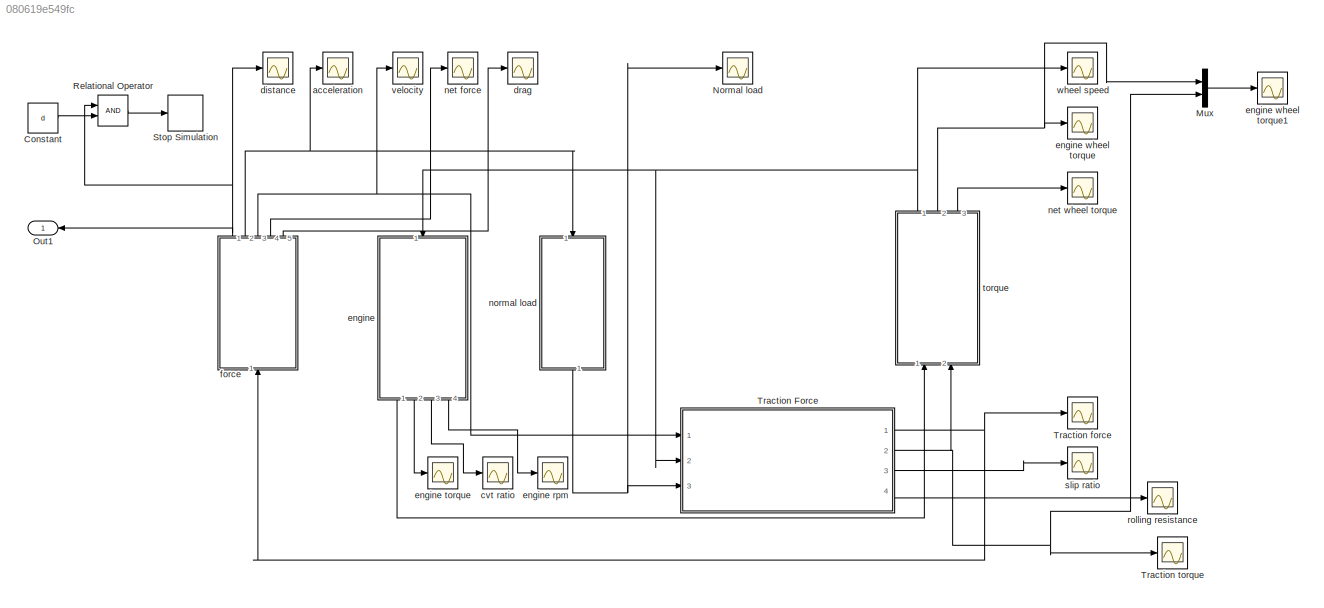
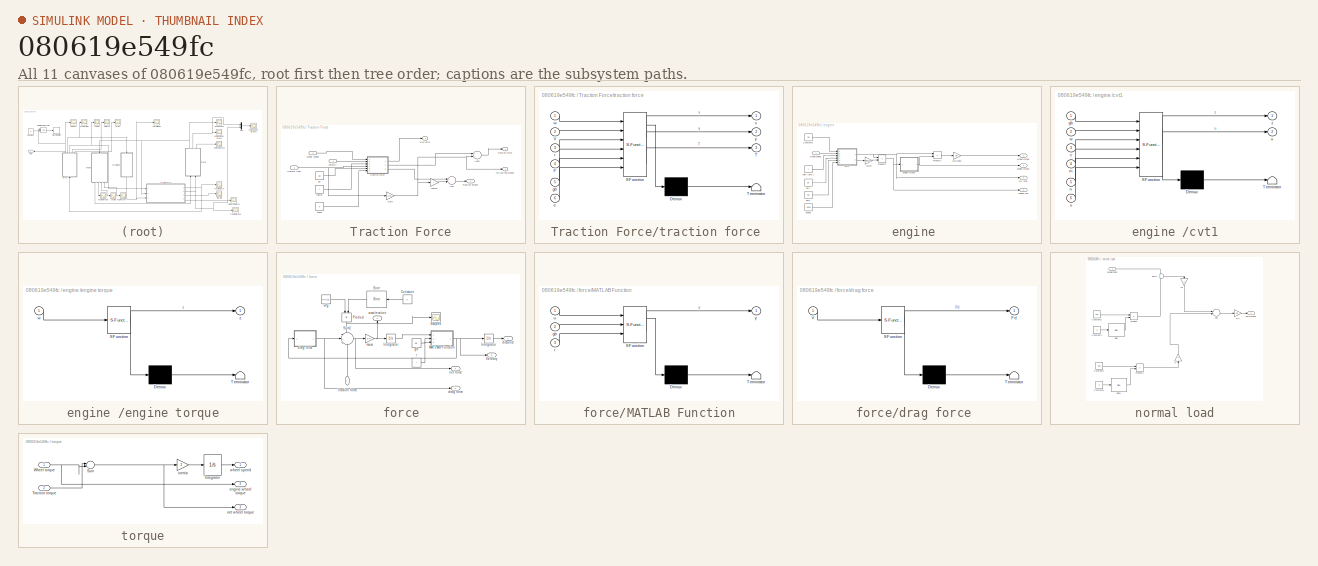
[diagram: thumbnail index - all 11 canvases of the model, root first then tree order]
MODEL slx_080619e549fc
KIND model
CONFIG AbsTol = auto
CONFIG FixedStep = 0.1
CONFIG MaxStep = auto
CONFIG MinStep = auto
CONFIG RelTol = 1e-3
CONFIG SampleTimeConstraint = Unconstrained
CONFIG Solver = ode23s
CONFIG SolverMode = Auto
CONFIG SolverName = ode23s
CONFIG StartTime = 0.0
CONFIG StopTime = 12
BLOCK [Constant] Constant
  Value = d
BLOCK [Mux] Mux
  DisplayOption = bar
  Inputs = 2
  Ports = [2, 1]
BLOCK [Scope] Normal load
  Ports = [1]
  ScopeSpecificationString = C++SS(StrPVP('Location','[878, 300, 1202, 539]'),StrPVP('Open','off'),MxPVP('AxesTitles',24,'struct(''axes1'',''%<SignalLabel>'')'),MxPVP('ScopeGraphics',28,'struct(''FigureColor'',''[0.5 0.5 0.5]'',''AxesColor'',''[0 0 0]'',''AxesTickColor'',''[1 1 1]'',''LineColors'',''[1 1 0;1 0 1;0 1 1;1 0 0;0 1 0;0 0 1]'',''LineStyles'',''-|-|-|-|-|-'',''LineWidths'',''[0.5 0.5 0.5 0.5 0.5 0.5]'',''MarkerStyl...<+273ch>
BLOCK [Outport] Out1
  IconDisplay = Port number
BLOCK [RelationalOperator] Relational Operator
  InputSameDT = off
  OutDataTypeStr = boolean
  Ports = [2, 1]
BLOCK [Stop] Stop Simulation
BLOCK [SubSystem] Traction Force
  Ports = [3, 4]
  RequestExecContextInheritance = off
  Variant = off
BLOCK [Sum] Traction Force/Add
  InputSameDT = off
  OutDataTypeStr = Inherit: Inherit via internal rule
  Ports = [2, 1]
  SaturateOnIntegerOverflow = off
BLOCK [Sum] Traction Force/Add1
  InputSameDT = off
  Inputs = +-
  OutDataTypeStr = Inherit: Inherit via internal rule
  Ports = [2, 1]
  SaturateOnIntegerOverflow = off
BLOCK [Gain] Traction Force/Gain
  Gain = 0.01
  OutDataTypeStr = Inherit: Inherit via internal rule
  ParamDataTypeStr = Inherit: Inherit via internal rule
  SaturateOnIntegerOverflow = off
BLOCK [Inport] Traction Force/Normal load
  IconDisplay = Port number
  Port = 3
BLOCK [Outport] Traction Force/Traction Torque
  IconDisplay = Port number
  Port = 2
BLOCK [Outport] Traction Force/Traction force
  IconDisplay = Port number
BLOCK [Inport] Traction Force/Wheel speed
  IconDisplay = Port number
  Port = 2
BLOCK [Constant] Traction Force/event
  Value = e
BLOCK [Constant] Traction Force/gb 
  Value = gb
BLOCK [Gain] Traction Force/radius
  Gain = r
  OutDataTypeStr = Inherit: Inherit via internal rule
  ParamDataTypeStr = Inherit: Inherit via internal rule
  SaturateOnIntegerOverflow = off
BLOCK [Constant] Traction Force/radius 
  Value = r
BLOCK [Outport] Traction Force/rolling resistance
  IconDisplay = Port number
  Port = 4
BLOCK [Outport] Traction Force/slip ratio
  IconDisplay = Port number
  Port = 3
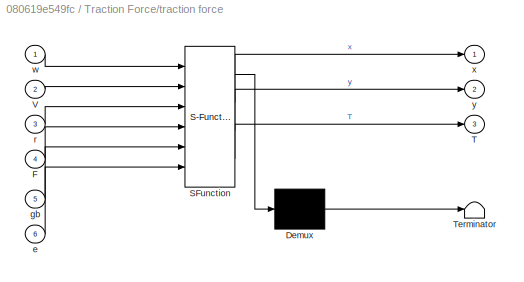
BLOCK [SubSystem] Traction Force/traction force 
  ErrorFcn = Stateflow.Translate.translate
  PermitHierarchicalResolution = ExplicitOnly
  Ports = [6, 3]
  RequestExecContextInheritance = off
  SFBlockType = MATLAB Function
  TreatAsAtomicUnit = on
  Variant = off
BLOCK [Demux] Traction Force/traction force / Demux 
  Outputs = 1
  Ports = [1, 1]
BLOCK [S-Function] Traction Force/traction force / SFunction 
  EnableBusSupport = on
  FunctionName = sf_sfun
  PortCounts = [6 4]
  Ports = [6, 4]
  SFunctionDeploymentMode = off
  Tag = Stateflow S-Function Fx 3
BLOCK [Terminator] Traction Force/traction force / Terminator 
BLOCK [Inport] Traction Force/traction force /F
  IconDisplay = Port number
  Port = 4
BLOCK [Outport] Traction Force/traction force /T
  IconDisplay = Port number
  Port = 3
BLOCK [Inport] Traction Force/traction force /V
  IconDisplay = Port number
  Port = 2
BLOCK [Inport] Traction Force/traction force /e
  IconDisplay = Port number
  Port = 6
BLOCK [Inport] Traction Force/traction force /gb
  IconDisplay = Port number
  Port = 5
BLOCK [Inport] Traction Force/traction force /r
  IconDisplay = Port number
  Port = 3
BLOCK [Inport] Traction Force/traction force /w
  IconDisplay = Port number
BLOCK [Outport] Traction Force/traction force /x
  IconDisplay = Port number
BLOCK [Outport] Traction Force/traction force /y
  IconDisplay = Port number
  Port = 2
BLOCK [Inport] Traction Force/velocity
  IconDisplay = Port number
BLOCK [Scope] Traction force
  Ports = [1]
  ScopeSpecificationString = Simulink.scopes.TimeScopeBlockCfg('CurrentConfiguration', extmgr.ConfigurationSet(extmgr.Configuration('Core','General UI',true),extmgr.Configuration('Core','Source UI',true),extmgr.Configuration('Sources','WiredSimulink',true,'DataLoggingVariableName','ScopeData2','DataLoggingSaveFormat','StructureWithTime','DataLoggingLimitDataPoints',true,'DataLoggingDecimation','1','DataLoggingDecimateData',tr...<+1701ch>
BLOCK [Scope] Traction torque
  Ports = [1]
  ScopeSpecificationString = Simulink.scopes.TimeScopeBlockCfg('CurrentConfiguration', extmgr.ConfigurationSet(extmgr.Configuration('Core','General UI',true),extmgr.Configuration('Core','Source UI',true),extmgr.Configuration('Sources','WiredSimulink',true,'DataLoggingVariableName','ScopeData8','DataLoggingSaveFormat','StructureWithTime','DataLoggingLimitDataPoints',true,'DataLoggingDecimation','1','DataLoggingDecimateData',tr...<+1693ch>
BLOCK [Scope] acceleration
  Ports = [1]
  ScopeSpecificationString = Simulink.scopes.TimeScopeBlockCfg('CurrentConfiguration', extmgr.ConfigurationSet(extmgr.Configuration('Core','General UI',true),extmgr.Configuration('Core','Source UI',true),extmgr.Configuration('Sources','WiredSimulink',true,'DataLoggingVariableName','ScopeData1','DataLoggingSaveFormat','StructureWithTime','DataLoggingLimitDataPoints',true,'DataLoggingDecimation','1','DataLoggingDecimateData',tr...<+1690ch>
BLOCK [Scope] cvt ratio
  Ports = [1]
  ScopeSpecificationString = Simulink.scopes.TimeScopeBlockCfg('CurrentConfiguration', extmgr.ConfigurationSet(extmgr.Configuration('Core','General UI',true),extmgr.Configuration('Core','Source UI',true),extmgr.Configuration('Sources','WiredSimulink',true,'DataLoggingVariableName','ScopeData15','DataLoggingSaveFormat','StructureWithTime','DataLoggingLimitDataPoints',true,'DataLoggingDecimation','1','DataLoggingDecimateData',t...<+1734ch>
BLOCK [Scope] distance
  Ports = [1]
  ScopeSpecificationString = Simulink.scopes.TimeScopeBlockCfg('CurrentConfiguration', extmgr.ConfigurationSet(extmgr.Configuration('Core','General UI',true),extmgr.Configuration('Core','Source UI',true),extmgr.Configuration('Sources','WiredSimulink',true,'DataLoggingSaveFormat','StructureWithTime','DataLoggingLimitDataPoints',true,'DataLoggingDecimation','1','DataLoggingDecimateData',true),extmgr.Configuration('Visuals','Tim...<+1645ch>
BLOCK [Scope] drag
  Ports = [1]
  ScopeSpecificationString = Simulink.scopes.TimeScopeBlockCfg('CurrentConfiguration', extmgr.ConfigurationSet(extmgr.Configuration('Core','General UI',true),extmgr.Configuration('Core','Source UI',true),extmgr.Configuration('Sources','WiredSimulink',true,'DataLoggingVariableName','ScopeData11','DataLoggingSaveFormat','StructureWithTime','DataLoggingLimitDataPoints',true,'DataLoggingDecimation','1','DataLoggingDecimateData',t...<+1692ch>
BLOCK [SubSystem] engine 
  Ports = [1, 4]
  RequestExecContextInheritance = off
  Variant = off
BLOCK [Constant] engine /Constant1
  Value = gb
BLOCK [Gain] engine /GB ratio1
  Gain = gb
  OutDataTypeStr = Inherit: Inherit via internal rule
  ParamDataTypeStr = Inherit: Inherit via internal rule
  SaturateOnIntegerOverflow = off
BLOCK [Product] engine /Product1
  InputSameDT = off
  OutDataTypeStr = Inherit: Inherit via internal rule
  Ports = [2, 1]
  RndMeth = Floor
  SaturateOnIntegerOverflow = off
BLOCK [Product] engine /Product2
  InputSameDT = off
  OutDataTypeStr = Inherit: Inherit via internal rule
  Ports = [2, 1]
  RndMeth = Floor
  SaturateOnIntegerOverflow = off
BLOCK [Outport] engine /cvt ratio
  IconDisplay = Port number
  Port = 3
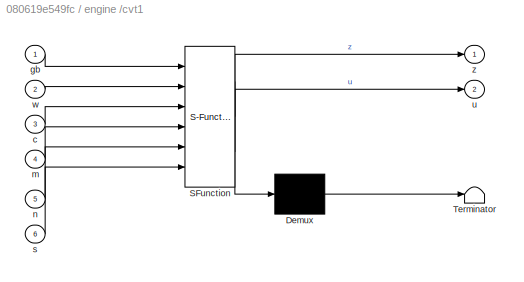
BLOCK [SubSystem] engine /cvt1
  ErrorFcn = Stateflow.Translate.translate
  PermitHierarchicalResolution = ExplicitOnly
  Ports = [6, 2]
  RequestExecContextInheritance = off
  SFBlockType = MATLAB Function
  TreatAsAtomicUnit = on
  Variant = off
BLOCK [Demux] engine /cvt1/ Demux 
  Outputs = 1
  Ports = [1, 1]
BLOCK [S-Function] engine /cvt1/ SFunction 
  EnableBusSupport = on
  FunctionName = sf_sfun
  PortCounts = [6 3]
  Ports = [6, 3]
  SFunctionDeploymentMode = off
  Tag = Stateflow S-Function Fx 5
BLOCK [Terminator] engine /cvt1/ Terminator 
BLOCK [Inport] engine /cvt1/c
  IconDisplay = Port number
  Port = 3
BLOCK [Inport] engine /cvt1/gb
  IconDisplay = Port number
BLOCK [Inport] engine /cvt1/m
  IconDisplay = Port number
  Port = 4
BLOCK [Inport] engine /cvt1/n
  IconDisplay = Port number
  Port = 5
BLOCK [Inport] engine /cvt1/s
  IconDisplay = Port number
  Port = 6
BLOCK [Outport] engine /cvt1/u
  IconDisplay = Port number
  Port = 2
BLOCK [Inport] engine /cvt1/w
  IconDisplay = Port number
  Port = 2
BLOCK [Outport] engine /cvt1/z
  IconDisplay = Port number
BLOCK [Outport] engine /engine rpm
  IconDisplay = Port number
  Port = 4
BLOCK [SubSystem] engine /engine torque
  ErrorFcn = Stateflow.Translate.translate
  PermitHierarchicalResolution = ExplicitOnly
  Ports = [1, 1]
  RequestExecContextInheritance = off
  SFBlockType = MATLAB Function
  TreatAsAtomicUnit = on
  Variant = off
BLOCK [Outport] engine /engine torque  
  IconDisplay = Port number
  Port = 2
BLOCK [Demux] engine /engine torque/ Demux 
  Outputs = 1
  Ports = [1, 1]
BLOCK [S-Function] engine /engine torque/ SFunction 
  EnableBusSupport = on
  FunctionName = sf_sfun
  PortCounts = [1 2]
  Ports = [1, 2]
  SFunctionDeploymentMode = off
  Tag = Stateflow S-Function Fx 6
BLOCK [Terminator] engine /engine torque/ Terminator 
BLOCK [Inport] engine /engine torque/w
  IconDisplay = Port number
BLOCK [Outport] engine /engine torque/z
  IconDisplay = Port number
BLOCK [Gain] engine /factor
  Gain = gb/0.104
  OutDataTypeStr = Inherit: Inherit via internal rule
  ParamDataTypeStr = Inherit: Inherit via internal rule
  SaturateOnIntegerOverflow = off
BLOCK [Constant] engine /hgr1
  Value = hgr
BLOCK [Constant] engine /lgr1
  Value = lgr
BLOCK [Constant] engine /shift ratio 1
  Value = c
BLOCK [Constant] engine /speed
  Value = 3800
BLOCK [Inport] engine /wheel speed 
  IconDisplay = Port number
BLOCK [Outport] engine /wheel torque 
  IconDisplay = Port number
BLOCK [Scope] engine rpm
  Ports = [1]
  ScopeSpecificationString = C++SS(StrPVP('Location','[291, 57, 592, 287]'),StrPVP('Open','off'),MxPVP('AxesTitles',24,'struct(''axes1'',''%<SignalLabel>'')'),MxPVP('ScopeGraphics',28,'struct(''FigureColor'',''[0.5 0.5 0.5]'',''AxesColor'',''[0 0 0]'',''AxesTickColor'',''[1 1 1]'',''LineColors'',''[1 1 0;1 0 1;0 1 1;1 0 0;0 1 0;0 0 1]'',''LineStyles'',''-|-|-|-|-|-'',''LineWidths'',''[0.5 0.5 0.5 0.5 0.5 0.5]'',''MarkerStyles...<+271ch>
BLOCK [Scope] engine torque
  Ports = [1]
  ScopeSpecificationString = C++SS(StrPVP('Location','[349, 139, 673, 378]'),StrPVP('Open','off'),MxPVP('AxesTitles',24,'struct(''axes1'',''%<SignalLabel>'')'),MxPVP('ScopeGraphics',28,'struct(''FigureColor'',''[0.5 0.5 0.5]'',''AxesColor'',''[0 0 0]'',''AxesTickColor'',''[1 1 1]'',''LineColors'',''[1 1 0;1 0 1;0 1 1;1 0 0;0 1 0;0 0 1]'',''LineStyles'',''-|-|-|-|-|-'',''LineWidths'',''[0.5 0.5 0.5 0.5 0.5 0.5]'',''MarkerStyle...<+272ch>
BLOCK [Scope] engine wheel torque
  Ports = [1]
  ScopeSpecificationString = C++SS(StrPVP('Location','[688, 469, 1012, 708]'),StrPVP('Open','off'),MxPVP('AxesTitles',24,'struct(''axes1'',''%<SignalLabel>'')'),MxPVP('ScopeGraphics',28,'struct(''FigureColor'',''[0.5 0.5 0.5]'',''AxesColor'',''[0 0 0]'',''AxesTickColor'',''[1 1 1]'',''LineColors'',''[1 1 0;1 0 1;0 1 1;1 0 0;0 1 0;0 0 1]'',''LineStyles'',''-|-|-|-|-|-'',''LineWidths'',''[0.5 0.5 0.5 0.5 0.5 0.5]'',''MarkerStyl...<+322ch>
BLOCK [Scope] engine wheel torque1
  Ports = [1]
  ScopeSpecificationString = C++SS(StrPVP('Location','[191, 290, 515, 529]'),StrPVP('Open','off'),MxPVP('AxesTitles',24,'struct(''axes1'',''%<SignalLabel>'')'),MxPVP('ScopeGraphics',28,'struct(''FigureColor'',''[0.5 0.5 0.5]'',''AxesColor'',''[0 0 0]'',''AxesTickColor'',''[1 1 1]'',''LineColors'',''[1 1 0;1 0 1;0 1 1;1 0 0;0 1 0;0 0 1]'',''LineStyles'',''-|-|-|-|-|-'',''LineWidths'',''[0.5 0.5 0.5 0.5 0.5 0.5]'',''MarkerStyle...<+272ch>
BLOCK [SubSystem] force
  Ports = [1, 5]
  RequestExecContextInheritance = off
  Variant = off
BLOCK [Constant] force/Constant
  Value = o
BLOCK [Integrator] force/Integrator 
  Ports = [1, 1]
BLOCK [SubSystem] force/MATLAB Function
  ErrorFcn = Stateflow.Translate.translate
  PermitHierarchicalResolution = ExplicitOnly
  Ports = [3, 1]
  RequestExecContextInheritance = off
  SFBlockType = MATLAB Function
  TreatAsAtomicUnit = on
  Variant = off
BLOCK [Demux] force/MATLAB Function/ Demux 
  Outputs = 1
  Ports = [1, 1]
BLOCK [S-Function] force/MATLAB Function/ SFunction 
  EnableBusSupport = on
  FunctionName = sf_sfun
  PortCounts = [3 2]
  Ports = [3, 2]
  SFunctionDeploymentMode = off
  Tag = Stateflow S-Function Fx 2
BLOCK [Terminator] force/MATLAB Function/ Terminator 
BLOCK [Inport] force/MATLAB Function/gb
  IconDisplay = Port number
  Port = 2
BLOCK [Inport] force/MATLAB Function/r
  IconDisplay = Port number
  Port = 3
BLOCK [Inport] force/MATLAB Function/u
  IconDisplay = Port number
BLOCK [Outport] force/MATLAB Function/y
  IconDisplay = Port number
BLOCK [Product] force/Product
  InputSameDT = off
  OutDataTypeStr = Inherit: Inherit via internal rule
  Ports = [2, 1]
  RndMeth = Floor
  SaturateOnIntegerOverflow = off
BLOCK [Scope] force/Scope6
  Ports = [1]
  ScopeSpecificationString = Simulink.scopes.TimeScopeBlockCfg('CurrentConfiguration', extmgr.ConfigurationSet(extmgr.Configuration('Core','General UI',true),extmgr.Configuration('Core','Source UI',true),extmgr.Configuration('Sources','WiredSimulink',true,'DataLoggingVariableName','ScopeData17','DataLoggingSaveFormat','StructureWithTime','DataLoggingLimitDataPoints',true,'DataLoggingDecimation','1','DataLoggingDecimateData',t...<+1707ch>
BLOCK [Reference] force/Sine  REF=simulink/Lookup
Tables/Sine
  Ports = [1, 1]
  SourceBlock = simulink/Lookup\nTables/Sine
  SourceType = Sine and Cosine
BLOCK [Sum] force/Sum1
  IconShape = round
  InputSameDT = off
  Inputs = --+
  OutDataTypeStr = Inherit: Inherit via internal rule
  Ports = [3, 1]
  SaturateOnIntegerOverflow = off
BLOCK [Inport] force/Traction force
  IconDisplay = Port number
BLOCK [Outport] force/Velocity
  IconDisplay = Port number
  Port = 3
BLOCK [Outport] force/acceleration
  IconDisplay = Port number
  Port = 2
BLOCK [Outport] force/distance
  IconDisplay = Port number
BLOCK [Outport] force/drag force
  IconDisplay = Port number
  Port = 5
BLOCK [SubSystem] force/drag force 
  ErrorFcn = Stateflow.Translate.translate
  PermitHierarchicalResolution = ExplicitOnly
  Ports = [1, 1]
  RequestExecContextInheritance = off
  SFBlockType = MATLAB Function
  TreatAsAtomicUnit = on
  Variant = off
BLOCK [Demux] force/drag force / Demux 
  Outputs = 1
  Ports = [1, 1]
BLOCK [S-Function] force/drag force / SFunction 
  EnableBusSupport = on
  FunctionName = sf_sfun
  PortCounts = [1 2]
  Ports = [1, 2]
  SFunctionDeploymentMode = off
  Tag = Stateflow S-Function Fx 4
BLOCK [Terminator] force/drag force / Terminator 
BLOCK [Outport] force/drag force /Fd
  IconDisplay = Port number
BLOCK [Inport] force/drag force /V
  IconDisplay = Port number
BLOCK [Constant] force/gb
  Value = gb
BLOCK [Constant] force/m*g
  Value = m*9.81
BLOCK [Gain] force/mass
  Gain = 1/m
  OutDataTypeStr = Inherit: Inherit via internal rule
  ParamDataTypeStr = Inherit: Inherit via internal rule
  SaturateOnIntegerOverflow = off
BLOCK [Outport] force/net force
  IconDisplay = Port number
  Port = 4
BLOCK [Constant] force/r
  Value = r
BLOCK [Scope] net force
  Ports = [1]
  ScopeSpecificationString = C++SS(StrPVP('Location','[164, 234, 683, 607]'),StrPVP('Open','off'),MxPVP('AxesTitles',24,'struct(''axes1'',''%<SignalLabel>'')'),MxPVP('ScopeGraphics',28,'struct(''FigureColor'',''[0.5 0.5 0.5]'',''AxesColor'',''[0 0 0]'',''AxesTickColor'',''[1 1 1]'',''LineColors'',''[1 1 0;1 0 1;0 1 1;1 0 0;0 1 0;0 0 1]'',''LineStyles'',''-|-|-|-|-|-'',''LineWidths'',''[0.5 0.5 0.5 0.5 0.5 0.5]'',''MarkerStyle...<+271ch>
BLOCK [Scope] net wheel torque
  Ports = [1]
  ScopeSpecificationString = Simulink.scopes.TimeScopeBlockCfg('CurrentConfiguration', extmgr.ConfigurationSet(extmgr.Configuration('Core','General UI',true),extmgr.Configuration('Core','Source UI',true),extmgr.Configuration('Sources','WiredSimulink',true,'DataLoggingVariableName','ScopeData7','DataLoggingSaveFormat','StructureWithTime','DataLoggingLimitDataPoints',true,'DataLoggingDecimation','1','DataLoggingDecimateData',tr...<+1697ch>
BLOCK [SubSystem] normal load
  Ports = [1, 1]
  RequestExecContextInheritance = off
  Variant = off
BLOCK [Sum] normal load/Add
  InputSameDT = off
  OutDataTypeStr = Inherit: Inherit via internal rule
  Ports = [2, 1]
  SaturateOnIntegerOverflow = off
BLOCK [Constant] normal load/Constant1
  Value = o
BLOCK [Constant] normal load/Constant2
  Value = 9.81
BLOCK [Constant] normal load/Constant3
  Value = o
BLOCK [Constant] normal load/Constant4
  Value = 9.81
BLOCK [Product] normal load/Product
  InputSameDT = off
  OutDataTypeStr = Inherit: Inherit via internal rule
  Ports = [2, 1]
  RndMeth = Floor
  SaturateOnIntegerOverflow = off
BLOCK [Product] normal load/Product1
  InputSameDT = off
  OutDataTypeStr = Inherit: Inherit via internal rule
  Ports = [2, 1]
  RndMeth = Floor
  SaturateOnIntegerOverflow = off
BLOCK [Reference] normal load/Sine  REF=simulink/Lookup
Tables/Sine
  Ports = [1, 1]
  SourceBlock = simulink/Lookup\nTables/Sine
  SourceType = Sine and Cosine
BLOCK [Reference] normal load/Sine1  REF=simulink/Lookup
Tables/Sine
  Ports = [1, 1]
  SourceBlock = simulink/Lookup\nTables/Sine
  SourceType = Sine and Cosine
BLOCK [Sum] normal load/Sum1
  IconShape = round
  InputSameDT = off
  OutDataTypeStr = Inherit: Inherit via internal rule
  Ports = [2, 1]
  SaturateOnIntegerOverflow = off
BLOCK [Gain] normal load/a
  Gain = a
  OutDataTypeStr = Inherit: Inherit via internal rule
  ParamDataTypeStr = Inherit: Inherit via internal rule
  SaturateOnIntegerOverflow = off
BLOCK [Inport] normal load/acceleration
  IconDisplay = Port number
BLOCK [Gain] normal load/cg
  Gain = h
  OutDataTypeStr = Inherit: Inherit via internal rule
  ParamDataTypeStr = Inherit: Inherit via internal rule
  SaturateOnIntegerOverflow = off
BLOCK [Gain] normal load/m//l
  Gain = m/l
  OutDataTypeStr = Inherit: Inherit via internal rule
  ParamDataTypeStr = Inherit: Inherit via internal rule
  SaturateOnIntegerOverflow = off
BLOCK [Outport] normal load/normal load 
  IconDisplay = Port number
BLOCK [Scope] rolling resistance
  Ports = [1]
  ScopeSpecificationString = C++SS(StrPVP('Location','[191, 290, 515, 529]'),StrPVP('Open','off'),MxPVP('AxesTitles',24,'struct(''axes1'',''%<SignalLabel>'')'),MxPVP('ScopeGraphics',28,'struct(''FigureColor'',''[0.5 0.5 0.5]'',''AxesColor'',''[0 0 0]'',''AxesTickColor'',''[1 1 1]'',''LineColors'',''[1 1 0;1 0 1;0 1 1;1 0 0;0 1 0;0 0 1]'',''LineStyles'',''-|-|-|-|-|-'',''LineWidths'',''[0.5 0.5 0.5 0.5 0.5 0.5]'',''MarkerStyle...<+272ch>
BLOCK [Scope] slip ratio
  Ports = [1]
  ScopeSpecificationString = C++SS(StrPVP('Location','[1018, 474, 1342, 713]'),StrPVP('Open','off'),MxPVP('AxesTitles',24,'struct(''axes1'',''%<SignalLabel>'')'),MxPVP('ScopeGraphics',28,'struct(''FigureColor'',''[0.5 0.5 0.5]'',''AxesColor'',''[0 0 0]'',''AxesTickColor'',''[1 1 1]'',''LineColors'',''[1 1 0;1 0 1;0 1 1;1 0 0;0 1 0;0 0 1]'',''LineStyles'',''-|-|-|-|-|-'',''LineWidths'',''[0.5 0.5 0.5 0.5 0.5 0.5]'',''MarkerSty...<+273ch>
BLOCK [SubSystem] torque
  Ports = [2, 3]
  RequestExecContextInheritance = off
  Variant = off
BLOCK [Integrator] torque/Integrator
  InitialCondition = 187.2/(lgr*gb)
  LimitOutput = on
  Ports = [1, 1]
  UpperSaturationLimit = 395.2/(gb*hgr)
BLOCK [Sum] torque/Sum
  IconShape = round
  InputSameDT = off
  Inputs = |+-
  OutDataTypeStr = Inherit: Inherit via internal rule
  Ports = [2, 1]
  SaturateOnIntegerOverflow = off
BLOCK [Inport] torque/Traction torque
  IconDisplay = Port number
  Port = 2
BLOCK [Inport] torque/Wheel torque
  IconDisplay = Port number
BLOCK [Outport] torque/engine wheel torque
  IconDisplay = Port number
  Port = 2
BLOCK [Gain] torque/inertia
  Gain = 2
  OutDataTypeStr = Inherit: Inherit via internal rule
  ParamDataTypeStr = Inherit: Inherit via internal rule
  SaturateOnIntegerOverflow = off
BLOCK [Outport] torque/net wheel torque
  IconDisplay = Port number
  Port = 3
BLOCK [Outport] torque/wheel speed 
  IconDisplay = Port number
BLOCK [Scope] velocity 
  Ports = [1]
  ScopeSpecificationString = Simulink.scopes.TimeScopeBlockCfg('CurrentConfiguration', extmgr.ConfigurationSet(extmgr.Configuration('Core','General UI',true),extmgr.Configuration('Core','Source UI',true),extmgr.Configuration('Sources','WiredSimulink',true,'DataLoggingVariableName','ScopeData3','DataLoggingSaveFormat','StructureWithTime','DataLoggingLimitDataPoints',true,'DataLoggingDecimation','1','DataLoggingDecimateData',tr...<+1691ch>
BLOCK [Scope] wheel speed 
  Ports = [1]
  ScopeSpecificationString = C++SS(StrPVP('Location','[355, 470, 679, 709]'),StrPVP('Open','off'),MxPVP('AxesTitles',24,'struct(''axes1'',''%<SignalLabel>'')'),MxPVP('ScopeGraphics',28,'struct(''FigureColor'',''[0.5 0.5 0.5]'',''AxesColor'',''[0 0 0]'',''AxesTickColor'',''[1 1 1]'',''LineColors'',''[1 1 0;1 0 1;0 1 1;1 0 0;0 1 0;0 0 1]'',''LineStyles'',''-|-|-|-|-|-'',''LineWidths'',''[0.5 0.5 0.5 0.5 0.5 0.5]'',''MarkerStyle...<+271ch>
LINE Constant:1 -> Relational Operator:2
LINE Mux:1 -> engine wheel torque1:1
LINE Relational Operator:1 -> Stop Simulation:1
LINE Traction Force/Add1:1 -> Traction Force/Traction force:1
LINE Traction Force/Add:1 -> Traction Force/Traction Torque:1
NET Traction Force/Gain:1 -> Traction Force/Add1:2, Traction Force/radius:1, Traction Force/rolling resistance:1
NET Traction Force/Normal load:1 -> Traction Force/Gain:1, Traction Force/traction force :4
LINE Traction Force/Wheel speed:1 -> Traction Force/traction force :1
LINE Traction Force/event:1 -> Traction Force/traction force :6
LINE Traction Force/gb :1 -> Traction Force/traction force :5
LINE Traction Force/radius :1 -> Traction Force/traction force :3
LINE Traction Force/radius:1 -> Traction Force/Add:2
LINE Traction Force/traction force :1 -> Traction Force/slip ratio:1
LINE Traction Force/traction force :2 -> Traction Force/Add1:1
LINE Traction Force/traction force :3 -> Traction Force/Add:1
LINE Traction Force/velocity:1 -> Traction Force/traction force :2
NET Traction Force:1 -> Traction force:1, force:1
NET Traction Force:2 -> Mux:2, Traction torque:1, torque:2
LINE Traction Force:3 -> slip ratio:1
LINE Traction Force:4 -> rolling resistance:1
LINE engine /Constant1:1 -> engine /cvt1:1
LINE engine /GB ratio1:1 -> engine /wheel torque :1
LINE engine /Product1:1 -> engine /GB ratio1:1
NET engine /Product2:1 -> engine /engine rpm:1, engine /engine torque:1
NET engine /cvt1:1 -> engine /Product1:1, engine /Product2:1, engine /cvt ratio:1
LINE engine /cvt1:2 -> engine /factor:1
NET engine /engine torque:1 -> engine /Product1:2, engine /engine torque  :1
LINE engine /factor:1 -> engine /Product2:2
LINE engine /hgr1:1 -> engine /cvt1:5
LINE engine /lgr1:1 -> engine /cvt1:4
LINE engine /shift ratio 1:1 -> engine /cvt1:3
LINE engine /speed:1 -> engine /cvt1:6
LINE engine /wheel speed :1 -> engine /cvt1:2
LINE engine :1 -> torque:1
LINE engine :2 -> engine torque:1
LINE engine :3 -> cvt ratio:1
LINE engine :4 -> engine rpm:1
LINE force/Constant:1 -> force/Sine:1
NET force/Integrator :1 -> force/MATLAB Function:1, force/distance:1
NET force/MATLAB Function:1 -> force/Integrator :1, force/Velocity:1, force/drag force :1
NET force/Product:1 -> force/Scope6:1, force/Sum1:1
LINE force/Sine:1 -> force/Product:2
NET force/Sum1:1 -> force/mass:1, force/net force:1
LINE force/Traction force:1 -> force/Sum1:3
NET force/drag force :1 -> force/Sum1:2, force/drag force:1
LINE force/gb:1 -> force/MATLAB Function:2
LINE force/m*g:1 -> force/Product:1
NET force/mass:1 -> force/Integrator :1, force/acceleration:1
LINE force/r:1 -> force/MATLAB Function:3
NET force:1 -> Out1:1, Relational Operator:1, distance:1
NET force:2 -> acceleration:1, normal load:1
NET force:3 -> Traction Force:1, velocity :1
LINE force:4 -> net force:1
LINE force:5 -> drag:1
LINE normal load/Add:1 -> normal load/m//l:1
LINE normal load/Constant1:1 -> normal load/Sine:1
LINE normal load/Constant2:1 -> normal load/Product:1
LINE normal load/Constant3:1 -> normal load/Sine1:1
LINE normal load/Constant4:1 -> normal load/Product1:1
LINE normal load/Product1:1 -> normal load/a:1
LINE normal load/Product:1 -> normal load/Sum1:2
LINE normal load/Sine1:1 -> normal load/Product1:2
LINE normal load/Sine:1 -> normal load/Product:2
LINE normal load/Sum1:1 -> normal load/cg:1
LINE normal load/a:1 -> normal load/Add:2
LINE normal load/acceleration:1 -> normal load/Sum1:1
LINE normal load/cg:1 -> normal load/Add:1
LINE normal load/m//l:1 -> normal load/normal load :1
NET normal load:1 -> Normal load:1, Traction Force:3
LINE torque/Integrator:1 -> torque/wheel speed :1
NET torque/Sum:1 -> torque/inertia:1, torque/net wheel torque:1
LINE torque/Traction torque:1 -> torque/Sum:1
NET torque/Wheel torque:1 -> torque/Sum:2, torque/engine wheel torque:1
LINE torque/inertia:1 -> torque/Integrator:1
NET torque:1 -> Traction Force:2, engine :1, wheel speed :1
NET torque:2 -> Mux:1, engine wheel torque:1
LINE torque:3 -> net wheel torque:1
note: NET lines group one-source signal fan-out (src -> all destinations, sorted); 1:1 wires keep LINE
CHART force/MATLAB Function states=1 transitions=1
  STATE_LABEL 'eML_blk_kernel()'
  STATE_LABEL 'SCRIPT:\nfunction y = fcn(u,gb,r)\nif u<r*(395.2/(gb*0.9))\n    y= u;\nelse\n    y =r*(395.2/(gb*0.9));\nend'
CHART Traction Force/traction force
 states=1 transitions=1
  STATE_LABEL 'eML_blk_kernel()'
  STATE_LABEL 'SCRIPT:\nfunction [x,y,T] = fcn(w,V,r,F,gb,e)\nif e == 1\nif w<(925.43/gb)\n    b = 0.2794*w - V;\n    if V > 0.1\n    x = b/V;\n    else\n    x = (2*b/(0.1 + V^2/0.1));\n    end\nelse\n    b = 0.2921*(925.43/gb) - V;\n    if V > 0.1\n    x = b/V;\n    else\n    x = (2*b/(0.1 + V^2/0.1));\n     end\nend\ny = F*0.75*sin(2.4*atan((7*x-(7*x-atan(7*x)))));\nT = y * r;\nelse\n    if w<(925.43/gb)\n    b = 0.2794*w - V;\n    ...<+257ch>'
CHART force/drag force
 states=1 transitions=1
  STATE_LABEL 'eML_blk_kernel()'
  STATE_LABEL 'SCRIPT:\nfunction Fd  = fcn(V)\nif V>0\nFd = 0.5*1.225*0.75*0.7*V^2;\nelse\n    Fd= - 0.5*1.225*0.75*0.7*V^2;\nend'
CHART engine
/cvt1 states=1 transitions=1
  STATE_LABEL 'eML_blk_kernel()'
  STATE_LABEL 'SCRIPT:\nfunction [z,u] = fcn(gb,w,c,m,n,s)\n if w < (s*0.104/(gb*n)) \n  if w < (c*0.104/(m*gb))\n  z = m;\n  else \n  x = [c*0.104/(gb*m) (c*0.104/gb + (s*0.104-0.104*c)/(gb*10))/(m-((m-n)/10)) (c*0.104/gb + 2*(s*0.104-0.104*c)/(gb*10))/(m-2*((m-n)/10)) (c*0.104/gb + 3*(s*0.104-0.104*c)/(gb*10))/(m-3*((m-n)/10)) (c*0.104/gb + 4*(s*0.104-0.104*c)/(gb*10))/(m-4*((m-n)/10)) (c*0.104/gb + 5*(s*0.104-0.104...<+657ch>'
CHART engine
/engine torque states=1 transitions=1
  STATE_LABEL 'eML_blk_kernel()'
  STATE_LABEL 'SCRIPT:\nfunction z = fcn(w)\nif w<3800\nx = [1700 2000 2300 2600 2900 3200 3500 3800];\ny = [18 19 19 18 17 17 17 16];\nt = polyfit(x,y,6);\nz = polyval(t,w);\nelse\n    z = 16\nend\n\n\n'
